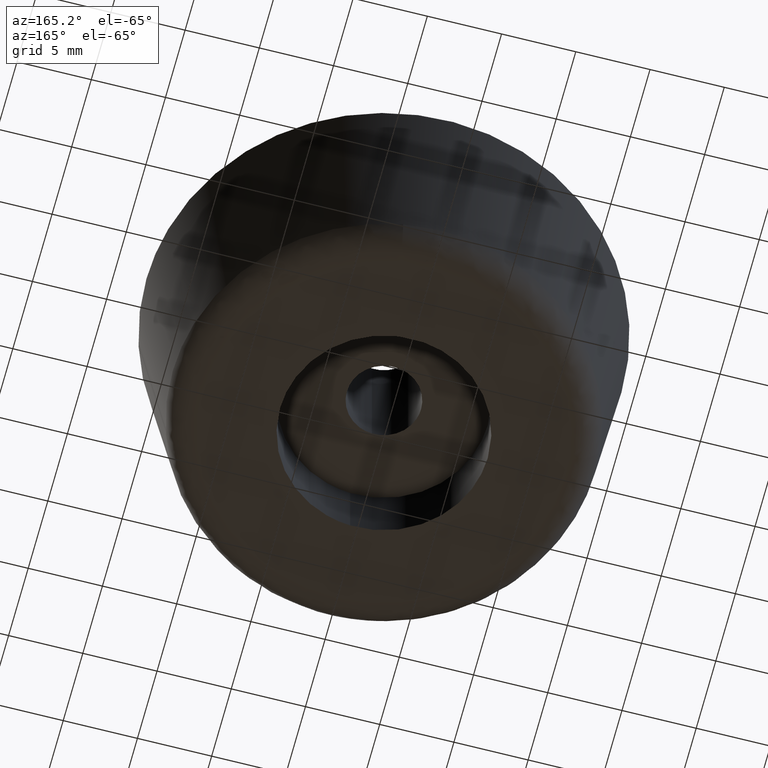
[diagram: clean part render]
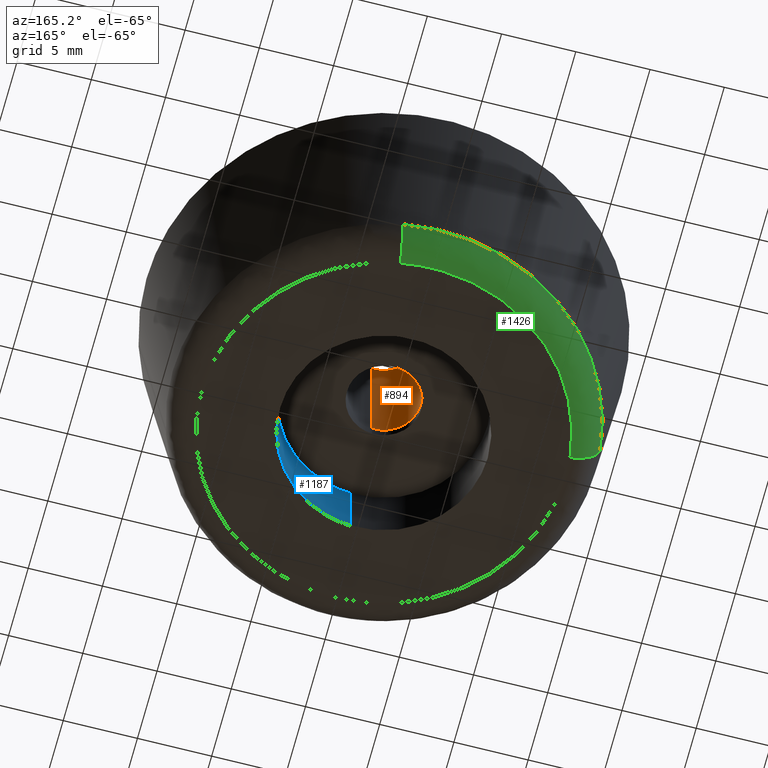
[diagram: same view with three faces highlighted in distinct colors, each labeled with its STEP entity id]
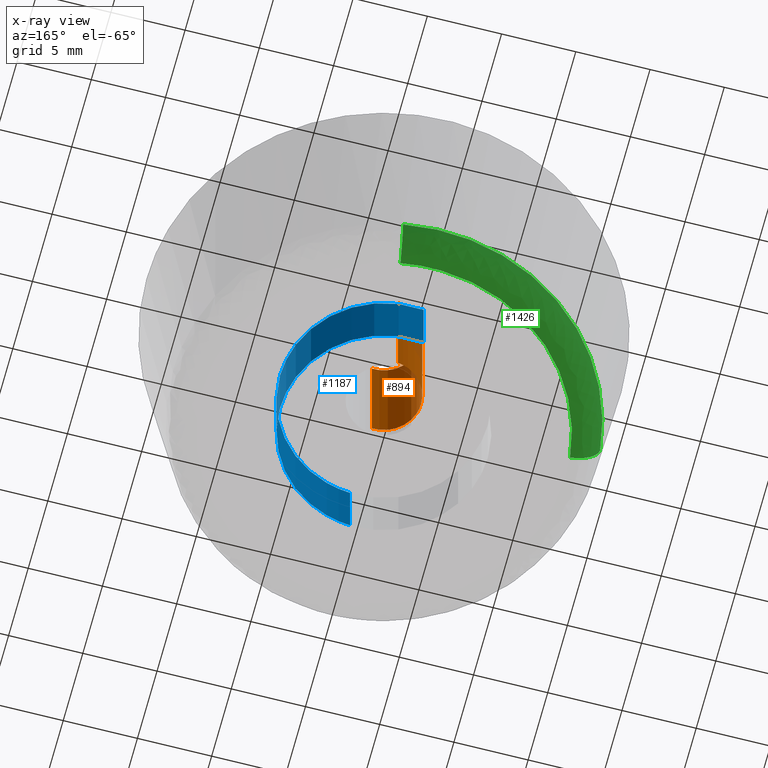
[diagram: x-ray of the same camera — body ghosted, the three highlighted faces saturated]
A machine part, auxiliary view with three faces highlighted in distinct colors.
The next image is the same camera in x-ray (body ghosted, the three faces saturated) — at least one of them is partly hidden behind the body in this view.
Their STEP definitions:

[orange] entity #894 — the highlighted face is a freeform B-spline surface patch.
#731=CARTESIAN_POINT('',(-0.295085586690287,2.482523815903414,15.0));
#732=VERTEX_POINT('',#731);
#750=CARTESIAN_POINT('',(-0.295085586690287,2.482523815903414,5.800000000000000));
#751=VERTEX_POINT('',#750);
#752=CARTESIAN_POINT('',(-0.295085586690287,2.482523815903414,15.0));
#753=CARTESIAN_POINT('',(-0.295085586690287,2.482523815903414,5.800000000000000));
#754=QUASI_UNIFORM_CURVE('',1,(#752,#753),.UNSPECIFIED.,.F.,.U.);
#755=EDGE_CURVE('',#732,#751,#754,.T.);
#774=CARTESIAN_POINT('',(0.152621348895174,-2.495336996051118,5.800000000000000));
#775=VERTEX_POINT('',#774);
#789=CARTESIAN_POINT('',(0.152621348895174,-2.495336996051118,15.0));
#790=VERTEX_POINT('',#789);
#791=CARTESIAN_POINT('',(0.152621348895174,-2.495336996051118,15.0));
#792=CARTESIAN_POINT('',(0.152621348895174,-2.495336996051118,5.800000000000000));
#793=QUASI_UNIFORM_CURVE('',1,(#791,#792),.UNSPECIFIED.,.F.,.U.);
#794=EDGE_CURVE('',#790,#775,#793,.T.);
#812=CARTESIAN_POINT('',(0.152621348837143,-2.495336996054667,15.230000000000000));
#813=CARTESIAN_POINT('',(-2.342715647217524,-2.647958344891809,15.230000000000000));
#814=CARTESIAN_POINT('',(-2.495336996054667,-0.152621348837143,15.230000000000000));
#815=CARTESIAN_POINT('',(-2.639465491831319,2.203858727098751,15.230000000000008));
#816=CARTESIAN_POINT('',(-0.295085586641896,2.482523815909166,15.229999999999999));
#817=CARTESIAN_POINT('',(0.152621348837143,-2.495336996054667,5.564250000000000));
#818=CARTESIAN_POINT('',(-2.342715647217524,-2.647958344891809,5.564250000000000));
#819=CARTESIAN_POINT('',(-2.495336996054667,-0.152621348837143,5.564250000000000));
#820=CARTESIAN_POINT('',(-2.639465491831319,2.203858727098751,5.564249999999998));
#821=CARTESIAN_POINT('',(-0.295085586641896,2.482523815909166,5.564250000000000));
#829=(BOUNDED_SURFACE()B_SPLINE_SURFACE(2,1,((#812,#817),(#813,#818),(#814,#819),(#815,#820),(#816,#821)),.UNSPECIFIED.,.F.,.F.,.U.)B_SPLINE_SURFACE_WITH_KNOTS((3,2,3),(2,2),(0.0,4.142135623730949,8.118585822512660),(0.0,9.665750000000006),.UNSPECIFIED.)GEOMETRIC_REPRESENTATION_ITEM()RATIONAL_B_SPLINE_SURFACE(((1.0,1.0),(0.707106781186548,0.707106781186548),(1.0,1.0),(0.718822509939086,0.718822509939086),(0.977505800795127,0.977505800795127)))REPRESENTATION_ITEM('')SURFACE());
#830=CARTESIAN_POINT('',(-2.500000000000000,0.0,15.0));
#831=VERTEX_POINT('',#830);
#832=CARTESIAN_POINT('',(-2.500000000000000,0.0,15.0));
#833=CARTESIAN_POINT('',(-2.500000000000000,2.220436314791246,15.000000000000005));
#834=CARTESIAN_POINT('',(-0.295085586690287,2.482523815903414,15.000000000000004));
#842=(BOUNDED_CURVE()B_SPLINE_CURVE(2,(#832,#833,#834),.UNSPECIFIED.,.F.,.U.)B_SPLINE_CURVE_WITH_KNOTS((3,3),(0.0,0.229562473509056),.UNSPECIFIED.)CURVE()GEOMETRIC_REPRESENTATION_ITEM()RATIONAL_B_SPLINE_CURVE((1.0,0.731050832860619,0.956026754174972))REPRESENTATION_ITEM(''));
#843=EDGE_CURVE('',#831,#732,#842,.T.);
#844=ORIENTED_EDGE('',*,*,#843,.F.);
#845=CARTESIAN_POINT('',(0.152621348895174,-2.495336996051118,14.999999999999995));
#846=CARTESIAN_POINT('',(0.076381908304666,-2.500000000000000,14.999999999999996));
#847=CARTESIAN_POINT('',(0.0,-2.500000000000000,15.0));
#848=CARTESIAN_POINT('',(-2.500000000000000,-2.500000000000000,14.999999999999995));
#849=CARTESIAN_POINT('',(-2.500000000000000,0.0,15.0));
#857=(BOUNDED_CURVE()B_SPLINE_CURVE(2,(#845,#846,#847,#848,#849),.UNSPECIFIED.,.F.,.U.)B_SPLINE_CURVE_WITH_KNOTS((3,2,3),(0.739332962233943,0.750000000000000,1.0),.UNSPECIFIED.)CURVE()GEOMETRIC_REPRESENTATION_ITEM()RATIONAL_B_SPLINE_CURVE((0.976072041656002,0.987502787893979,1.0,0.707106781186548,1.0))REPRESENTATION_ITEM(''));
#858=EDGE_CURVE('',#790,#831,#857,.T.);
#859=ORIENTED_EDGE('',*,*,#858,.F.);
#860=ORIENTED_EDGE('',*,*,#794,.T.);
#861=CARTESIAN_POINT('',(-2.500000000000000,0.0,5.800000000000000));
#862=VERTEX_POINT('',#861);
#863=CARTESIAN_POINT('',(0.152621348895174,-2.495336996051118,5.800000000000000));
#864=CARTESIAN_POINT('',(0.076381908304666,-2.500000000000000,5.799999999999999));
#865=CARTESIAN_POINT('',(0.0,-2.500000000000000,5.800000000000000));
#866=CARTESIAN_POINT('',(-2.500000000000000,-2.500000000000000,5.800000000000001));
#867=CARTESIAN_POINT('',(-2.500000000000000,0.0,5.800000000000000));
#875=(BOUNDED_CURVE()B_SPLINE_CURVE(2,(#863,#864,#865,#866,#867),.UNSPECIFIED.,.F.,.U.)B_SPLINE_CURVE_WITH_KNOTS((3,2,3),(0.739332962233943,0.750000000000000,1.0),.UNSPECIFIED.)CURVE()GEOMETRIC_REPRESENTATION_ITEM()RATIONAL_B_SPLINE_CURVE((0.976072041656002,0.987502787893979,1.0,0.707106781186548,1.0))REPRESENTATION_ITEM(''));
#876=EDGE_CURVE('',#775,#862,#875,.T.);
#877=ORIENTED_EDGE('',*,*,#876,.T.);
#878=CARTESIAN_POINT('',(-2.500000000000000,0.0,5.800000000000000));
#879=CARTESIAN_POINT('',(-2.500000000000000,2.220436314791246,5.800000000000001));
#880=CARTESIAN_POINT('',(-0.295085586690287,2.482523815903414,5.800000000000000));
#888=(BOUNDED_CURVE()B_SPLINE_CURVE(2,(#878,#879,#880),.UNSPECIFIED.,.F.,.U.)B_SPLINE_CURVE_WITH_KNOTS((3,3),(0.0,0.229562473509056),.UNSPECIFIED.)CURVE()GEOMETRIC_REPRESENTATION_ITEM()RATIONAL_B_SPLINE_CURVE((1.0,0.731050832860619,0.956026754174972))REPRESENTATION_ITEM(''));
#889=EDGE_CURVE('',#862,#751,#888,.T.);
#890=ORIENTED_EDGE('',*,*,#889,.T.);
#891=ORIENTED_EDGE('',*,*,#755,.F.);
#892=EDGE_LOOP('',(#844,#859,#860,#877,#890,#891));
#893=FACE_OUTER_BOUND('',#892,.T.);
#894=ADVANCED_FACE('',(#893),#829,.F.);

[blue] entity #1187 — the highlighted face is a freeform B-spline surface patch.
#1081=CARTESIAN_POINT('',(-0.929388897007004,6.938805832080081,5.125000000000003));
#1082=CARTESIAN_POINT('',(-0.877668855653977,6.944953542988632,5.125000000000001));
#1083=CARTESIAN_POINT('',(-0.627303100465844,6.974713308140240,5.125000000000001));
#1084=CARTESIAN_POINT('',(-0.427339776743999,6.986943588953067,5.125000000000001));
#1085=CARTESIAN_POINT('',(6.559603812209068,7.414283365697066,5.125000000000001));
#1086=CARTESIAN_POINT('',(6.986943588953067,0.427339776743999,5.125000000000001));
#1087=CARTESIAN_POINT('',(7.414283365697066,-6.559603812209068,5.125000000000001));
#1088=CARTESIAN_POINT('',(0.377090994728546,-6.990016936120503,5.125000000000001));
#1089=CARTESIAN_POINT('',(0.327140700341582,-6.993072027002495,5.124999999999998));
#1090=CARTESIAN_POINT('',(-0.929388897007004,6.938805832080081,-0.128125000000000));
#1091=CARTESIAN_POINT('',(-0.877668855653977,6.944953542988632,-0.128125000000000));
#1092=CARTESIAN_POINT('',(-0.627303100465844,6.974713308140240,-0.128125000000000));
#1093=CARTESIAN_POINT('',(-0.427339776743999,6.986943588953067,-0.128125000000000));
#1094=CARTESIAN_POINT('',(6.559603812209068,7.414283365697066,-0.128125000000000));
#1095=CARTESIAN_POINT('',(6.986943588953067,0.427339776743999,-0.128125000000000));
#1096=CARTESIAN_POINT('',(7.414283365697066,-6.559603812209068,-0.128125000000000));
#1097=CARTESIAN_POINT('',(0.377090994728546,-6.990016936120503,-0.128125000000000));
#1098=CARTESIAN_POINT('',(0.327140700341582,-6.993072027002495,-0.128125000000000));
#1106=(BOUNDED_SURFACE()B_SPLINE_SURFACE(2,1,((#1081,#1090),(#1082,#1091),(#1083,#1092),(#1084,#1093),(#1085,#1094),(#1086,#1095),(#1087,#1096),(#1088,#1097),(#1089,#1098)),.UNSPECIFIED.,.F.,.F.,.U.)B_SPLINE_SURFACE_WITH_KNOTS((3,1,2,2,1,3),(2,2),(0.0,0.118291174878799,0.582210364736666,12.180190111183320,23.778169857629980,23.896482544396800),(0.0,5.253125000000003),.UNSPECIFIED.)GEOMETRIC_REPRESENTATION_ITEM()RATIONAL_B_SPLINE_SURFACE(((0.972009162755240,0.972009162755240),(0.974757481775183,0.974757481775183),(0.988284271247462,0.988284271247462),(1.0,1.0),(0.707106781186548,0.707106781186548),(1.0,1.0),(0.707106781186548,0.707106781186548),(1.002987846539758,1.002987846539758),(1.005975693079516,1.005975693079516)))REPRESENTATION_ITEM('')SURFACE());
#1107=CARTESIAN_POINT('',(-0.826232407674893,6.951067544518226,7.305849E-014));
#1108=VERTEX_POINT('',#1107);
#1109=CARTESIAN_POINT('',(7.0,0.0,0.0));
#1110=VERTEX_POINT('',#1109);
#1111=CARTESIAN_POINT('',(-0.826232407674893,6.951067544518226,7.305849E-014));
#1112=CARTESIAN_POINT('',(-0.414565181859389,7.0,0.0));
#1113=CARTESIAN_POINT('',(0.0,7.0,0.0));
#1114=CARTESIAN_POINT('',(6.999999999999999,6.999999999999999,0.0));
#1115=CARTESIAN_POINT('',(7.0,0.0,0.0));
#1123=(BOUNDED_CURVE()B_SPLINE_CURVE(2,(#1111,#1112,#1113,#1114,#1115),.UNSPECIFIED.,.F.,.U.)B_SPLINE_CURVE_WITH_KNOTS((3,2,3),(0.229562649420369,0.250000000000000,0.500000000000000),.UNSPECIFIED.)CURVE()GEOMETRIC_REPRESENTATION_ITEM()RATIONAL_B_SPLINE_CURVE((0.956027098968635,0.976056154418852,1.0,0.707106781186547,1.0))REPRESENTATION_ITEM(''));
#1124=EDGE_CURVE('',#1108,#1110,#1123,.T.);
#1125=ORIENTED_EDGE('',*,*,#1124,.T.);
#1126=CARTESIAN_POINT('',(0.427328470493930,-6.986944280454582,4.651834E-014));
#1127=VERTEX_POINT('',#1126);
#1128=CARTESIAN_POINT('',(7.0,0.0,0.0));
#1129=CARTESIAN_POINT('',(7.000000000000001,-6.584953143992288,0.0));
#1130=CARTESIAN_POINT('',(0.427328470493929,-6.986944280454582,4.651834E-014));
#1138=(BOUNDED_CURVE()B_SPLINE_CURVE(2,(#1128,#1129,#1130),.UNSPECIFIED.,.F.,.U.)B_SPLINE_CURVE_WITH_KNOTS((3,3),(0.500000000000000,0.739333241456697),.UNSPECIFIED.)CURVE()GEOMETRIC_REPRESENTATION_ITEM()RATIONAL_B_SPLINE_CURVE((1.0,0.719603666162763,0.976072640084247))REPRESENTATION_ITEM(''));
#1139=EDGE_CURVE('',#1110,#1127,#1138,.T.);
#1140=ORIENTED_EDGE('',*,*,#1139,.T.);
#1141=CARTESIAN_POINT('',(0.427328609956511,-6.986944271925134,5.0));
#1142=VERTEX_POINT('',#1141);
#1143=CARTESIAN_POINT('',(0.427328609956511,-6.986944271925134,5.0));
#1144=CARTESIAN_POINT('',(0.427328470493930,-6.986944280454582,4.651834E-014));
#1145=QUASI_UNIFORM_CURVE('',1,(#1143,#1144),.UNSPECIFIED.,.F.,.U.);
#1146=EDGE_CURVE('',#1142,#1127,#1145,.T.);
#1147=ORIENTED_EDGE('',*,*,#1146,.F.);
#1148=CARTESIAN_POINT('',(7.0,0.0,5.0));
#1149=VERTEX_POINT('',#1148);
#1150=CARTESIAN_POINT('',(7.0,0.0,5.0));
#1151=CARTESIAN_POINT('',(7.0,-6.584953012308039,4.999999999999999));
#1152=CARTESIAN_POINT('',(0.427328609956511,-6.986944271925134,5.0));
#1160=(BOUNDED_CURVE()B_SPLINE_CURVE(2,(#1150,#1151,#1152),.UNSPECIFIED.,.F.,.U.)B_SPLINE_CURVE_WITH_KNOTS((3,3),(0.500000000000000,0.739333238012583),.UNSPECIFIED.)CURVE()GEOMETRIC_REPRESENTATION_ITEM()RATIONAL_B_SPLINE_CURVE((1.0,0.719603670197793,0.976072632702837))REPRESENTATION_ITEM(''));
#1161=EDGE_CURVE('',#1149,#1142,#1160,.T.);
#1162=ORIENTED_EDGE('',*,*,#1161,.F.);
#1163=CARTESIAN_POINT('',(-0.826232496864986,6.951067533916820,5.0));
#1164=VERTEX_POINT('',#1163);
#1165=CARTESIAN_POINT('',(-0.826232496864986,6.951067533916821,5.0));
#1166=CARTESIAN_POINT('',(-0.414565226925875,7.0,5.0));
#1167=CARTESIAN_POINT('',(0.0,7.0,5.0));
#1168=CARTESIAN_POINT('',(6.999999999999999,6.999999999999999,4.999999999999999));
#1169=CARTESIAN_POINT('',(7.0,0.0,5.0));
#1177=(BOUNDED_CURVE()B_SPLINE_CURVE(2,(#1165,#1166,#1167,#1168,#1169),.UNSPECIFIED.,.F.,.U.)B_SPLINE_CURVE_WITH_KNOTS((3,2,3),(0.229562647251865,0.250000000000000,0.500000000000000),.UNSPECIFIED.)CURVE()GEOMETRIC_REPRESENTATION_ITEM()RATIONAL_B_SPLINE_CURVE((0.956027094718271,0.976056151878291,1.0,0.707106781186547,1.0))REPRESENTATION_ITEM(''));
#1178=EDGE_CURVE('',#1164,#1149,#1177,.T.);
#1179=ORIENTED_EDGE('',*,*,#1178,.F.);
#1180=CARTESIAN_POINT('',(-0.826232496864986,6.951067533916820,5.0));
#1181=CARTESIAN_POINT('',(-0.826232407674893,6.951067544518226,7.305849E-014));
#1182=QUASI_UNIFORM_CURVE('',1,(#1180,#1181),.UNSPECIFIED.,.F.,.U.);
#1183=EDGE_CURVE('',#1164,#1108,#1182,.T.);
#1184=ORIENTED_EDGE('',*,*,#1183,.T.);
#1185=EDGE_LOOP('',(#1125,#1140,#1147,#1162,#1179,#1184));
#1186=FACE_OUTER_BOUND('',#1185,.T.);
#1187=ADVANCED_FACE('',(#1186),#1106,.F.);

[green] entity #1426 — the highlighted face is a freeform B-spline surface patch.
#661=CARTESIAN_POINT('',(2.412205854072831,14.025500403396210,1.735673009159751));
#662=VERTEX_POINT('',#661);
#676=CARTESIAN_POINT('',(-14.140502789280269,1.606106943626014,1.735673009137659));
#677=VERTEX_POINT('',#676);
#678=CARTESIAN_POINT('',(-14.140502789280273,1.606106943626015,1.735673009137659));
#679=CARTESIAN_POINT('',(-12.706493892473151,14.231423000000005,1.735673000000001));
#680=CARTESIAN_POINT('',(0.0,14.231422999999999,1.735673000000000));
#681=CARTESIAN_POINT('',(1.214892416485184,14.231423000000003,1.735673000000000));
#682=CARTESIAN_POINT('',(2.412205854072831,14.025500403396215,1.735673009159751));
#690=(BOUNDED_CURVE()B_SPLINE_CURVE(2,(#678,#679,#680,#681,#682),.UNSPECIFIED.,.F.,.U.)B_SPLINE_CURVE_WITH_KNOTS((3,2,3),(0.019555763443353,0.250000000000000,0.279150973644628),.UNSPECIFIED.)CURVE()GEOMETRIC_REPRESENTATION_ITEM()RATIONAL_B_SPLINE_CURVE((0.957762333073472,0.730017783191660,1.0,0.965847509990715,0.939659646670702))REPRESENTATION_ITEM(''));
#691=EDGE_CURVE('',#677,#662,#690,.T.);
#1300=CARTESIAN_POINT('',(2.076182406279386,12.071729751755260,7.454664E-015));
#1301=VERTEX_POINT('',#1300);
#1317=CARTESIAN_POINT('',(2.412205854072832,14.025500403396208,1.735673009159750));
#1318=CARTESIAN_POINT('',(2.372980032117370,13.797426260944924,1.177093E-009));
#1319=CARTESIAN_POINT('',(2.076182406279385,12.071729751755253,7.454664E-015));
#1327=(BOUNDED_CURVE()B_SPLINE_CURVE(2,(#1317,#1318,#1319),.UNSPECIFIED.,.F.,.U.)B_SPLINE_CURVE_WITH_KNOTS((3,3),(-1.709476799894566,-0.283065973095551),.UNSPECIFIED.)CURVE()GEOMETRIC_REPRESENTATION_ITEM()RATIONAL_B_SPLINE_CURVE((0.871963753607451,0.656901442502971,0.874224248207718))REPRESENTATION_ITEM(''));
#1328=EDGE_CURVE('',#662,#1301,#1327,.T.);
#1335=CARTESIAN_POINT('',(-12.170712154045679,1.382374134200424,7.477843E-015));
#1336=VERTEX_POINT('',#1335);
#1337=CARTESIAN_POINT('',(-14.140502789280271,1.606106943626015,1.735673009137659));
#1338=CARTESIAN_POINT('',(-13.910558548058230,1.579989411033531,1.175985E-009));
#1339=CARTESIAN_POINT('',(-12.170712154045678,1.382374134200424,7.477843E-015));
#1347=(BOUNDED_CURVE()B_SPLINE_CURVE(2,(#1337,#1338,#1339),.UNSPECIFIED.,.F.,.U.)B_SPLINE_CURVE_WITH_KNOTS((3,3),(-1.709476799870467,-0.283065973094864),.UNSPECIFIED.)CURVE()GEOMETRIC_REPRESENTATION_ITEM()RATIONAL_B_SPLINE_CURVE((0.892029236952771,0.672017948100358,0.894341749682521))REPRESENTATION_ITEM(''));
#1348=EDGE_CURVE('',#677,#1336,#1347,.T.);
#1383=CARTESIAN_POINT('',(-14.153411457662495,1.607573136323049,1.865133850799687));
#1384=CARTESIAN_POINT('',(-12.545838321339437,15.760984593985537,1.865133850799686));
#1385=CARTESIAN_POINT('',(1.607573136323048,14.153411457662495,1.865133850799687));
#1386=CARTESIAN_POINT('',(2.012637300645425,14.107403449557893,1.865133850799687));
#1387=CARTESIAN_POINT('',(2.414407148485374,14.038304220947142,1.865133850799687));
#1388=CARTESIAN_POINT('',(-14.019753763671440,1.592392024760962,-0.125149030827184));
#1389=CARTESIAN_POINT('',(-12.427361738910477,15.612145788432398,-0.125149030827184));
#1390=CARTESIAN_POINT('',(1.592392024760961,14.019753763671440,-0.125149030827184));
#1391=CARTESIAN_POINT('',(1.993630966995810,13.974180232038249,-0.125149030827184));
#1392=CARTESIAN_POINT('',(2.391606702614967,13.905733541762876,-0.125149030827184));
#1393=CARTESIAN_POINT('',(-12.041846435174019,1.367737304805970,0.004209582671775));
#1394=CARTESIAN_POINT('',(-10.674109130368054,13.409583739979992,0.004209582671775));
#1395=CARTESIAN_POINT('',(1.367737304805970,12.041846435174019,0.004209582671775));
#1396=CARTESIAN_POINT('',(1.712369443690155,12.002702418903384,0.004209582671775));
#1397=CARTESIAN_POINT('',(2.054198749256810,11.943912189974569,0.004209582671775));
#1405=(BOUNDED_SURFACE()B_SPLINE_SURFACE(2,2,((#1383,#1388,#1393),(#1384,#1389,#1394),(#1385,#1390,#1395),(#1386,#1391,#1396),(#1387,#1392,#1397)),.UNSPECIFIED.,.F.,.F.,.U.)B_SPLINE_SURFACE_WITH_KNOTS((3,2,3),(3,3),(0.0,23.600918860484349,24.544954714600120),(0.0,3.307635759716735),.UNSPECIFIED.)GEOMETRIC_REPRESENTATION_ITEM()RATIONAL_B_SPLINE_SURFACE(((0.915112003079691,0.648819666938892,0.917655545973479),(0.647081902922854,0.458784786259688,0.648880459351291),(0.915112003079691,0.648819666938892,0.917655545973479),(0.904390809297954,0.641218278960979,0.906904552761548),(0.894527310200794,0.634225001441360,0.897013638186335)))REPRESENTATION_ITEM('')SURFACE());
#1406=CARTESIAN_POINT('',(-12.170712154045683,1.382374134200425,7.477843E-015));
#1407=CARTESIAN_POINT('',(-10.936462528926402,12.248967000000002,1.421085E-014));
#1408=CARTESIAN_POINT('',(0.0,12.248967000000000,1.421085E-014));
#1409=CARTESIAN_POINT('',(1.045656300069904,12.248966999999997,1.421085E-014));
#1410=CARTESIAN_POINT('',(2.076182406279386,12.071729751755257,7.454664E-015));
#1418=(BOUNDED_CURVE()B_SPLINE_CURVE(2,(#1406,#1407,#1408,#1409,#1410),.UNSPECIFIED.,.F.,.U.)B_SPLINE_CURVE_WITH_KNOTS((3,2,3),(0.019555763445303,0.250000000000000,0.279150973646203),.UNSPECIFIED.)CURVE()GEOMETRIC_REPRESENTATION_ITEM()RATIONAL_B_SPLINE_CURVE((0.957762333069618,0.730017783193945,1.0,0.965847509988869,0.939659646667872))REPRESENTATION_ITEM(''));
#1419=EDGE_CURVE('',#1336,#1301,#1418,.T.);
#1420=ORIENTED_EDGE('',*,*,#1419,.F.);
#1421=ORIENTED_EDGE('',*,*,#1348,.F.);
#1422=ORIENTED_EDGE('',*,*,#691,.T.);
#1423=ORIENTED_EDGE('',*,*,#1328,.T.);
#1424=EDGE_LOOP('',(#1420,#1421,#1422,#1423));
#1425=FACE_OUTER_BOUND('',#1424,.T.);
#1426=ADVANCED_FACE('',(#1425),#1405,.T.);